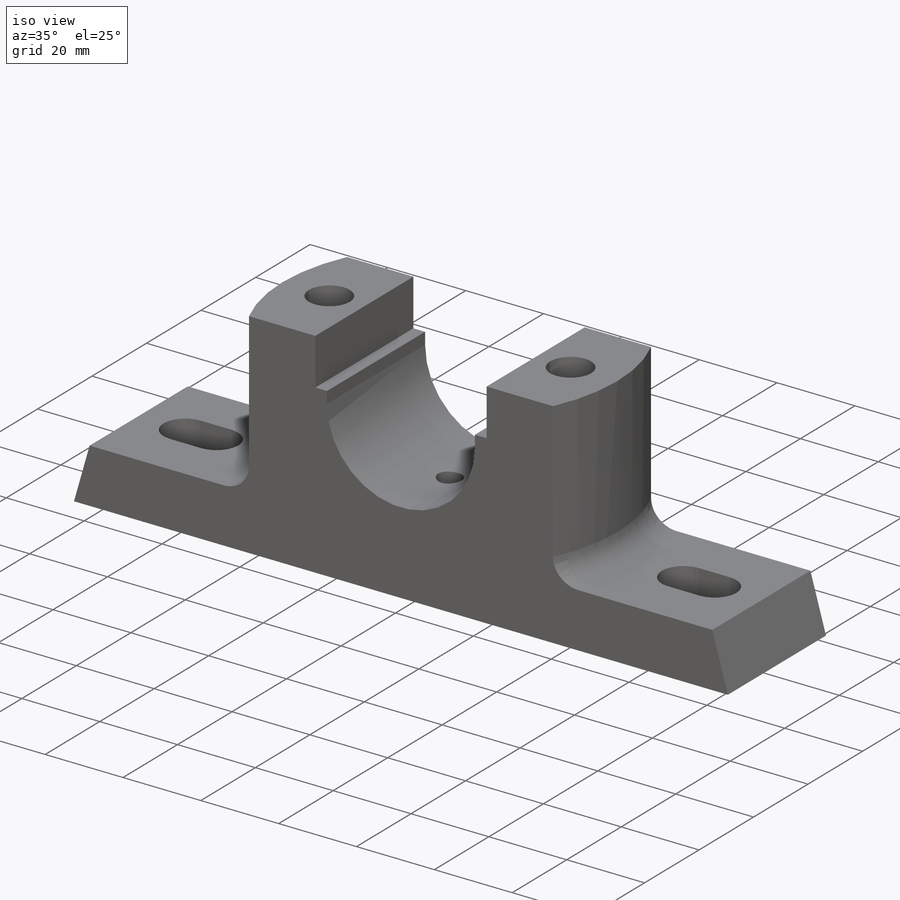
[diagram: iso view]
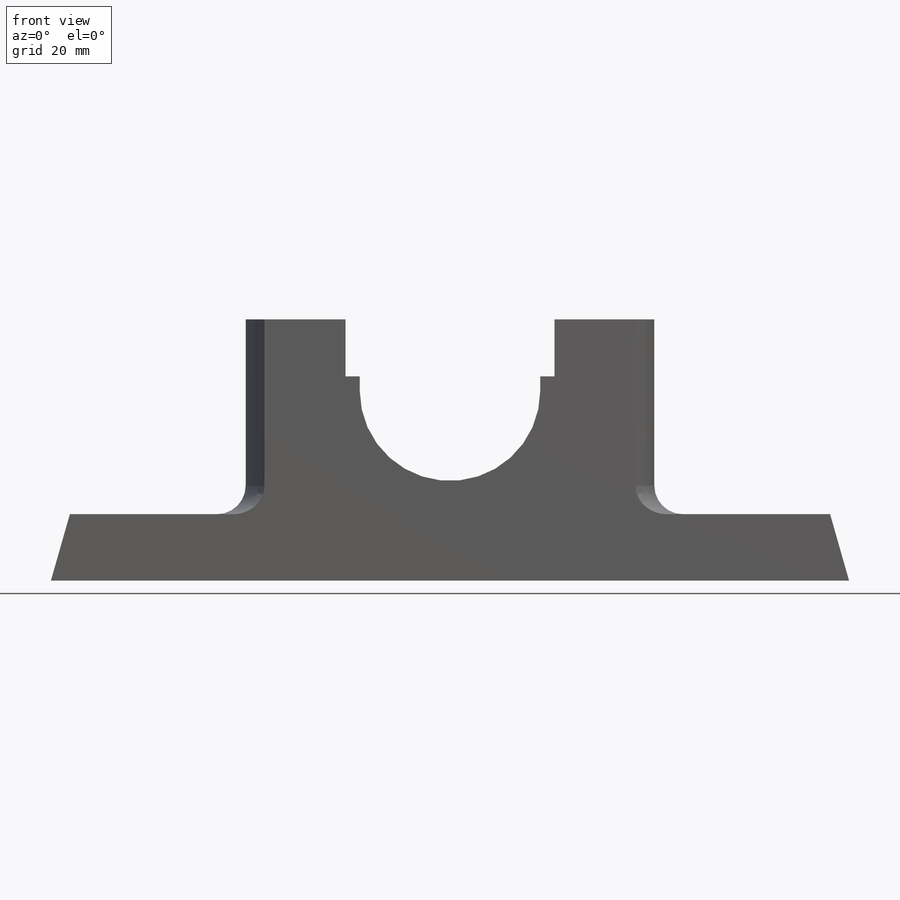
[diagram: front view]
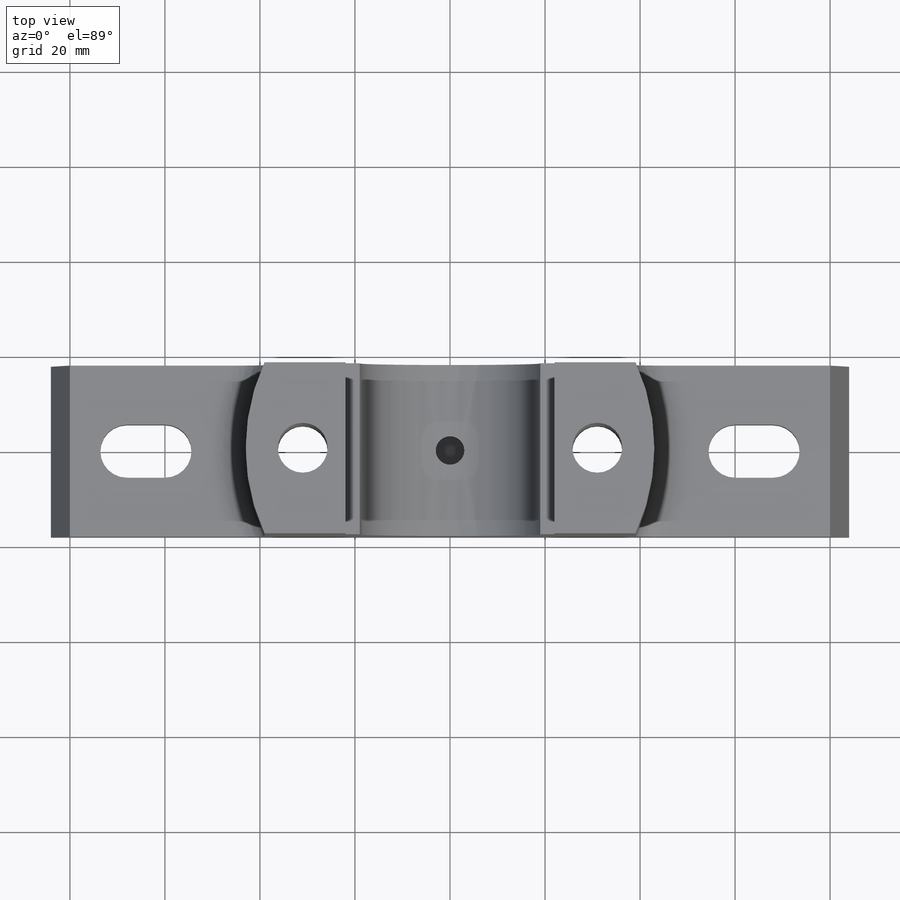
[diagram: top view]
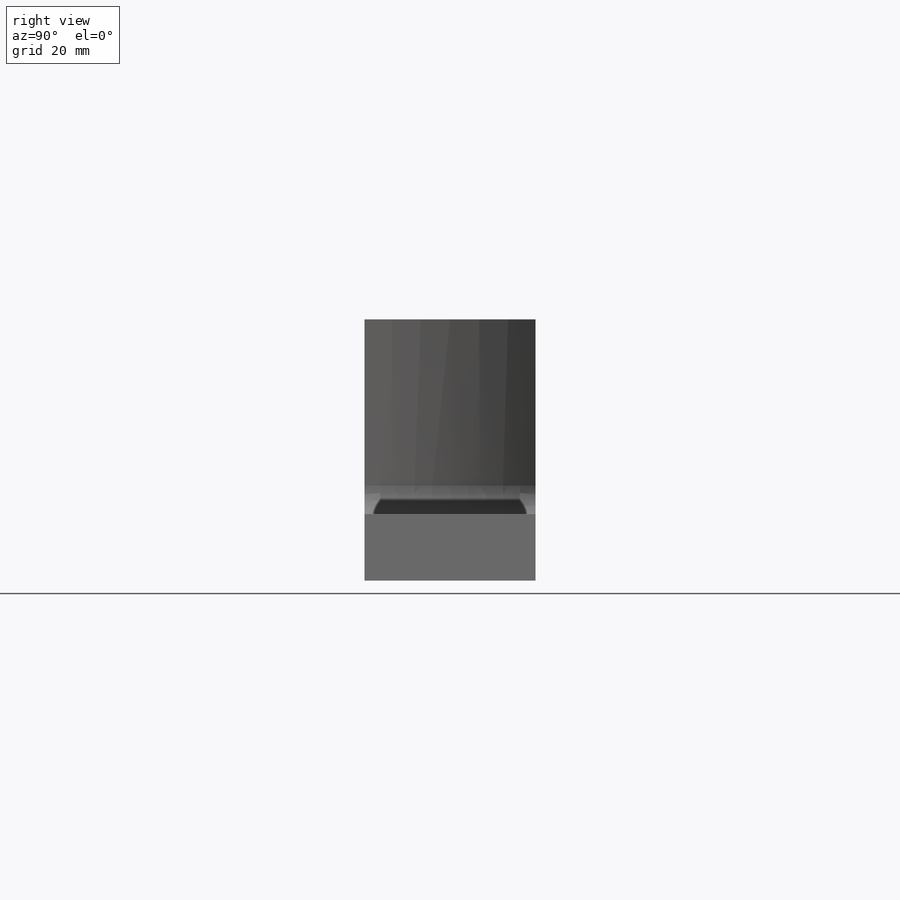
[diagram: right view]
SOLIDWORKS PART (.sldprt)
format: sldprt  version: not decoded by parser v0  size: 364,032 bytes
history: native  units: mm
features: sketch x8, cut_extrude x6, extrude x2, fillet x2, material x1, plane x1 (+13 scaffold rows collapsed)
feature tree (33):
  scaffold x13  (default folders/planes/origin — collapsed)
  material  "Material <not specified>"
  sketch  "Sketch2"  dims[c1.D1=168.0mm c1.D2=168.0mm c2.D2=45.0deg c2.D3=~10.190495mm c3.D3=135.0deg c3.D4=14.0mm c4.D3=~19.79899mm c5.D3=45.0deg c5.D5=14.0mm c6.D3=4.0mm c6.D2=4.0mm]
  extrude  "Boss-Extrude1"  Depth=36mm
  sketch  "Sketch3"  dims[D1=10.5mm D2=86.0mm]
  extrude  "Boss-Extrude2"  Depth=41mm
  sketch  "Sketch4"  dims[D1=8.0mm D2=64.0mm]
  cut_extrude  "Cut-Extrude1"  Depth=12mm
  fillet  "Fillet1"  Radius=6mm
  sketch  "Sketch5"  dims[c1.D3=~14.799927mm c1.D4=19.0mm c1.D6=19.0mm c1.D1=19.0mm c1.D2=~26.868296mm c2.D1=3.0mm c2.D2=12.0mm c2.D3=22.0mm c2.D5=3.0mm c2.D6=21.0mm]
  cut_extrude  "Cut-Extrude2"  [1 undecoded]
  sketch  "Sketch7"  dims[D1=10.5mm D2=31.0mm]
  cut_extrude  "Cut-Extrude3"  Depth=46mm
  sketch  "Sketch10"  dims[D1=8.0mm D2=8.0mm D3=8.0mm D4=8.0mm]
  cut_extrude  "Cut-Extrude4"  Depth=2mm
  fillet  "Fillet2"  Radius=1mm
  sketch  "Sketch11"  dims[D1=31.0mm D2=20.0mm]
  cut_extrude  "Cut-Extrude5"  Depth=9mm
  plane  "Plane2"  Offset=25mm
  sketch  "Sketch15"  dims[D1=6.0mm]
  cut_extrude  "Cut-Extrude6"  Depth=10mm
decode coverage: 17 of 18 modeling features carry decoded parameters
note: ~ marks probable driven/reference dimensions
note: 1 parameter value undecoded
note: suppression state not decoded; provenance and decode notes live in map.json
